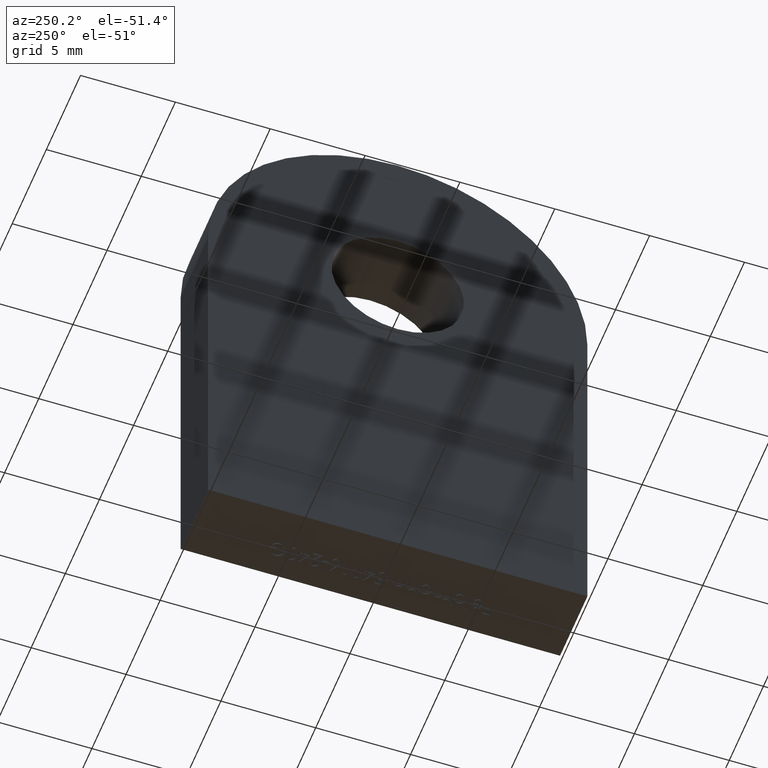
[diagram: clean part render]
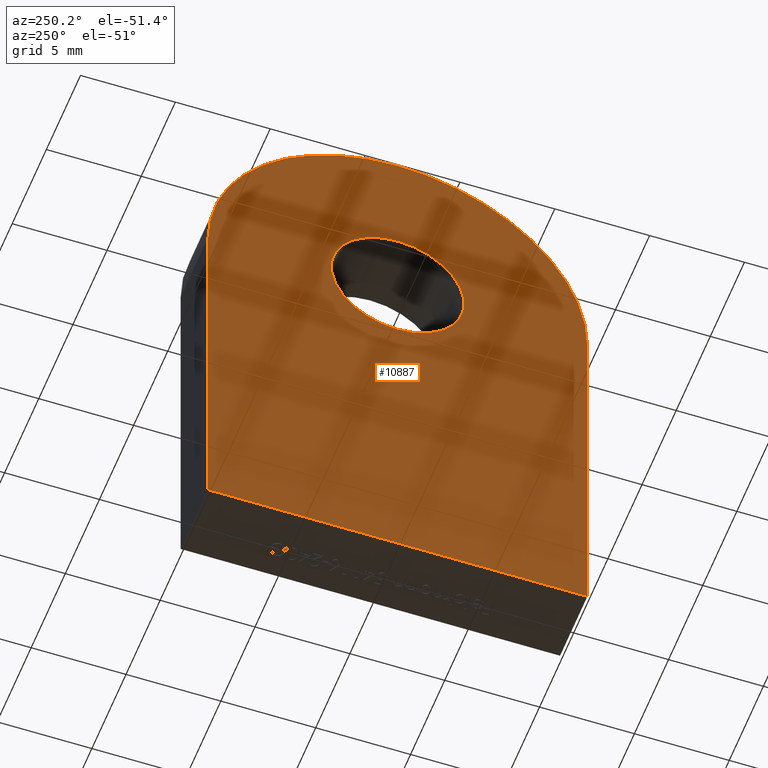
[diagram: same view with one face highlighted and labeled with its STEP entity id]
A machine part, auxiliary view. The second image highlights one B-rep face of the part: STEP entity #10887.
In plain terms, the highlighted planar face has unit normal (-1, -0, 0).
Its self-contained STEP definition (entity closure, byte-faithful):
#63 = VERTEX_POINT ( 'NONE', #5822 ) ;
#240 = AXIS2_PLACEMENT_3D ( 'NONE', #891, #2707, #8439 ) ;
#634 = CARTESIAN_POINT ( 'NONE',  ( -2.000000000000000000, 0.0000000000000000000, 16.99999999999999600 ) ) ;
#891 = CARTESIAN_POINT ( 'NONE',  ( -2.000000000000000000, 0.0000000000000000000, 20.49999999999999600 ) ) ;
#1359 = DIRECTION ( 'NONE',  ( -1.000000000000000000, -0.0000000000000000000, 0.0000000000000000000 ) ) ;
#1529 = EDGE_LOOP ( 'NONE', ( #10234, #11838, #7010, #4445, #6770 ) ) ;
#1672 = DIRECTION ( 'NONE',  ( 0.0000000000000000000, 0.0000000000000000000, 1.000000000000000000 ) ) ;
#1891 = AXIS2_PLACEMENT_3D ( 'NONE', #7963, #6228, #7169 ) ;
#1899 = VERTEX_POINT ( 'NONE', #2203 ) ;
#2056 = ORIENTED_EDGE ( 'NONE', *, *, #2744, .T. ) ;
#2203 = CARTESIAN_POINT ( 'NONE',  ( -2.000000000000000000, -10.00000000000000000, 19.99999999999999600 ) ) ;
#2226 = LINE ( 'NONE', #3343, #5905 ) ;
#2333 = CARTESIAN_POINT ( 'NONE',  ( -2.000000000000000000, 0.0000000000000000000, 30.00000000000000000 ) ) ;
#2345 = CARTESIAN_POINT ( 'NONE',  ( -2.000000000000000000, 0.0000000000000000000, 19.99999999999999600 ) ) ;
#2447 = AXIS2_PLACEMENT_3D ( 'NONE', #3624, #12142, #9401 ) ;
#2707 = DIRECTION ( 'NONE',  ( 1.000000000000000000, 0.0000000000000000000, 0.0000000000000000000 ) ) ;
#2744 = EDGE_CURVE ( 'NONE', #3267, #8705, #10880, .T. ) ;
#3149 = FACE_BOUND ( 'NONE', #8174, .T. ) ;
#3242 = CARTESIAN_POINT ( 'NONE',  ( -2.000000000000000000, 10.00000000000000000, -3.061616997868383000E-015 ) ) ;
#3267 = VERTEX_POINT ( 'NONE', #634 ) ;
#3276 = CIRCLE ( 'NONE', #1891, 3.499999999999999600 ) ;
#3343 = CARTESIAN_POINT ( 'NONE',  ( -2.000000000000000000, 10.00000000000000000, 19.99999999999999600 ) ) ;
#3624 = CARTESIAN_POINT ( 'NONE',  ( -2.000000000000000000, 0.0000000000000000000, 19.99999999999999600 ) ) ;
#3810 = LINE ( 'NONE', #6847, #6636 ) ;
#4339 = CARTESIAN_POINT ( 'NONE',  ( -2.000000000000000000, 10.00000000000000000, -3.061616997868383000E-015 ) ) ;
#4445 = ORIENTED_EDGE ( 'NONE', *, *, #7172, .T. ) ;
#4652 = PLANE ( 'NONE',  #2447 ) ;
#5383 = DIRECTION ( 'NONE',  ( -1.000000000000000000, -0.0000000000000000000, 0.0000000000000000000 ) ) ;
#5542 = FACE_OUTER_BOUND ( 'NONE', #1529, .T. ) ;
#5822 = CARTESIAN_POINT ( 'NONE',  ( -2.000000000000000000, 10.00000000000000000, 19.99999999999999600 ) ) ;
#5905 = VECTOR ( 'NONE', #8201, 1000.000000000000000 ) ;
#5958 = CIRCLE ( 'NONE', #12305, 10.00000000000000200 ) ;
#5975 = DIRECTION ( 'NONE',  ( 0.0000000000000000000, 0.0000000000000000000, 1.000000000000000000 ) ) ;
#6187 = DIRECTION ( 'NONE',  ( 0.0000000000000000000, -1.000000000000000000, 0.0000000000000000000 ) ) ;
#6228 = DIRECTION ( 'NONE',  ( 1.000000000000000000, 0.0000000000000000000, 0.0000000000000000000 ) ) ;
#6375 = VECTOR ( 'NONE', #6187, 1000.000000000000000 ) ;
#6624 = VERTEX_POINT ( 'NONE', #2333 ) ;
#6636 = VECTOR ( 'NONE', #5975, 1000.000000000000000 ) ;
#6770 = ORIENTED_EDGE ( 'NONE', *, *, #9617, .T. ) ;
#6847 = CARTESIAN_POINT ( 'NONE',  ( -2.000000000000000000, -10.00000000000000000, -3.061616997868383000E-015 ) ) ;
#7010 = ORIENTED_EDGE ( 'NONE', *, *, #10012, .T. ) ;
#7169 = DIRECTION ( 'NONE',  ( 0.0000000000000000000, 0.0000000000000000000, -1.000000000000000000 ) ) ;
#7172 = EDGE_CURVE ( 'NONE', #9217, #10625, #11416, .T. ) ;
#7949 = DIRECTION ( 'NONE',  ( 0.0000000000000000000, 0.0000000000000000000, 1.000000000000000000 ) ) ;
#7963 = CARTESIAN_POINT ( 'NONE',  ( -2.000000000000000000, 0.0000000000000000000, 20.49999999999999600 ) ) ;
#8174 = EDGE_LOOP ( 'NONE', ( #2056, #8687 ) ) ;
#8201 = DIRECTION ( 'NONE',  ( 0.0000000000000000000, 0.0000000000000000000, -1.000000000000000000 ) ) ;
#8263 = CIRCLE ( 'NONE', #11257, 10.00000000000000200 ) ;
#8439 = DIRECTION ( 'NONE',  ( 0.0000000000000000000, 0.0000000000000000000, -1.000000000000000000 ) ) ;
#8687 = ORIENTED_EDGE ( 'NONE', *, *, #12167, .T. ) ;
#8705 = VERTEX_POINT ( 'NONE', #9427 ) ;
#9158 = EDGE_CURVE ( 'NONE', #1899, #6624, #8263, .T. ) ;
#9217 = VERTEX_POINT ( 'NONE', #3242 ) ;
#9401 = DIRECTION ( 'NONE',  ( 0.0000000000000000000, 0.0000000000000000000, 1.000000000000000000 ) ) ;
#9427 = CARTESIAN_POINT ( 'NONE',  ( -2.000000000000000000, 4.286263797015737100E-016, 23.99999999999999600 ) ) ;
#9617 = EDGE_CURVE ( 'NONE', #10625, #1899, #3810, .T. ) ;
#10012 = EDGE_CURVE ( 'NONE', #63, #9217, #2226, .T. ) ;
#10234 = ORIENTED_EDGE ( 'NONE', *, *, #9158, .T. ) ;
#10625 = VERTEX_POINT ( 'NONE', #11079 ) ;
#10880 = CIRCLE ( 'NONE', #240, 3.499999999999999600 ) ;
#10887 = ADVANCED_FACE ( 'NONE', ( #3149, #5542 ), #4652, .T. ) ;
#11079 = CARTESIAN_POINT ( 'NONE',  ( -2.000000000000000000, -10.00000000000000000, -3.061616997868383000E-015 ) ) ;
#11257 = AXIS2_PLACEMENT_3D ( 'NONE', #2345, #1359, #7949 ) ;
#11416 = LINE ( 'NONE', #4339, #6375 ) ;
#11838 = ORIENTED_EDGE ( 'NONE', *, *, #12224, .T. ) ;
#12109 = CARTESIAN_POINT ( 'NONE',  ( -2.000000000000000000, 0.0000000000000000000, 19.99999999999999600 ) ) ;
#12142 = DIRECTION ( 'NONE',  ( -1.000000000000000000, -0.0000000000000000000, 0.0000000000000000000 ) ) ;
#12167 = EDGE_CURVE ( 'NONE', #8705, #3267, #3276, .T. ) ;
#12224 = EDGE_CURVE ( 'NONE', #6624, #63, #5958, .T. ) ;
#12305 = AXIS2_PLACEMENT_3D ( 'NONE', #12109, #5383, #1672 ) ;